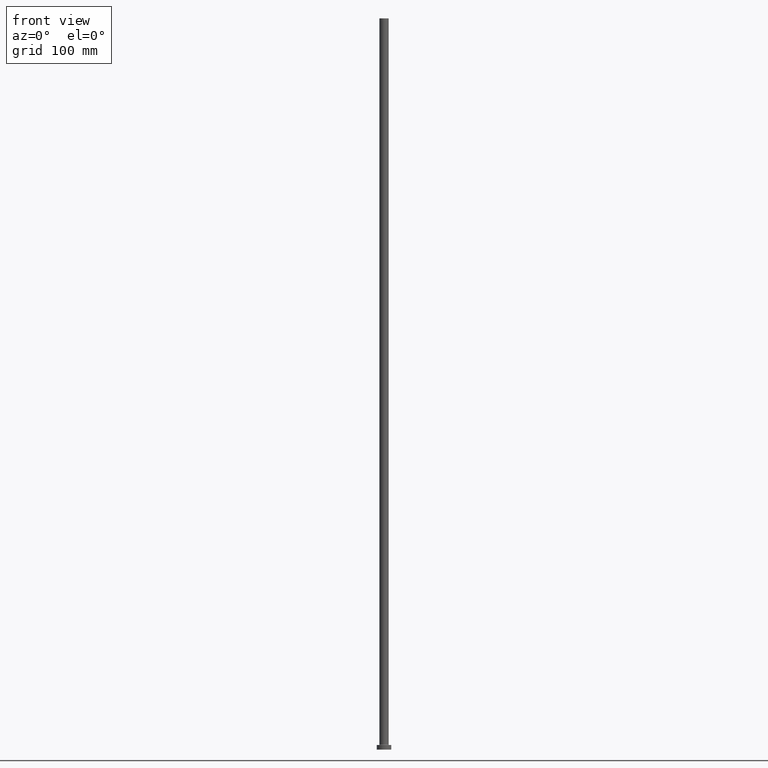
[diagram: clean part render]
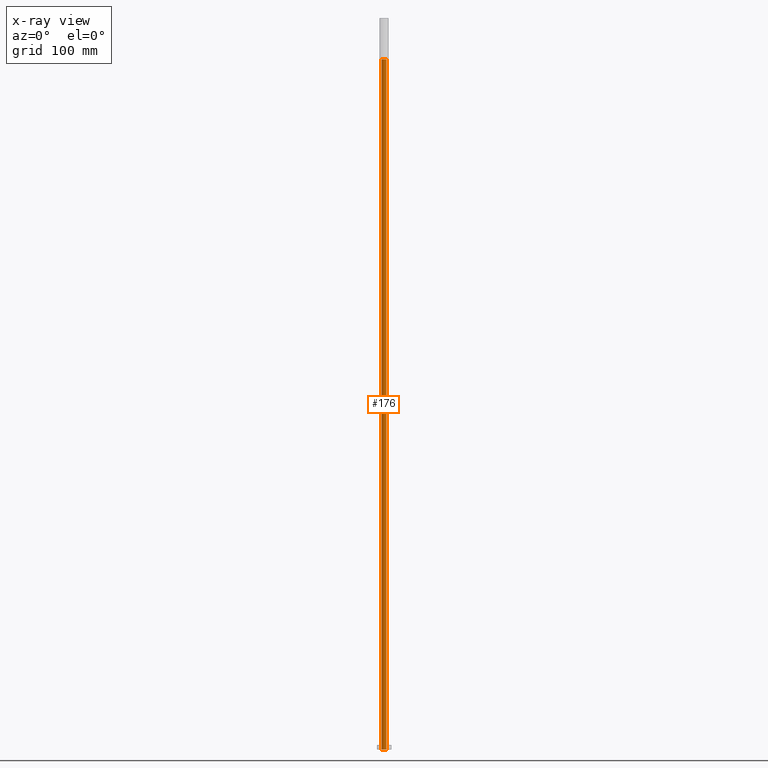
[diagram: x-ray — body ghosted, one internal face saturated and labeled with its STEP entity id]
A machine part, front view, then the same camera in x-ray: the body is ghosted and one INTERNAL B-rep face — a face not visible from any outside direction — is saturated and labeled: STEP entity #176.
In plain terms, the highlighted cylindrical surface (edge-blend (fillet) strip) has radius 2.65 mm, axis along (0, 0, -1).
Its self-contained STEP definition (entity closure, byte-faithful):
#3 = CIRCLE ( 'NONE', #120, 2.649999999999999911 ) ;
#4 = CARTESIAN_POINT ( 'NONE',  ( 2.649999999999999911, 3.245314017740485962E-16, 755.0000000000000000 ) ) ;
#6 = AXIS2_PLACEMENT_3D ( 'NONE', #245, #280, #47 ) ;
#22 = EDGE_CURVE ( 'NONE', #371, #219, #78, .T. ) ;
#28 = EDGE_CURVE ( 'NONE', #371, #98, #380, .T. ) ;
#30 = ORIENTED_EDGE ( 'NONE', *, *, #453, .T. ) ;
#38 = DIRECTION ( 'NONE',  ( 0.000000000000000000, 0.000000000000000000, -1.000000000000000000 ) ) ;
#40 = CARTESIAN_POINT ( 'NONE',  ( 0.000000000000000000, 0.000000000000000000, 0.000000000000000000 ) ) ;
#46 = LINE ( 'NONE', #314, #101 ) ;
#47 = DIRECTION ( 'NONE',  ( -1.000000000000000000, 0.000000000000000000, 0.000000000000000000 ) ) ;
#78 = CIRCLE ( 'NONE', #444, 2.649999999999999911 ) ;
#86 = VECTOR ( 'NONE', #450, 1000.000000000000000 ) ;
#98 = VERTEX_POINT ( 'NONE', #165 ) ;
#101 = VECTOR ( 'NONE', #38, 1000.000000000000000 ) ;
#102 = CARTESIAN_POINT ( 'NONE',  ( -2.649999999999999911, 0.000000000000000000, 762.4953318805775098 ) ) ;
#103 = VERTEX_POINT ( 'NONE', #301 ) ;
#120 = AXIS2_PLACEMENT_3D ( 'NONE', #40, #383, #347 ) ;
#149 = EDGE_CURVE ( 'NONE', #219, #103, #46, .T. ) ;
#165 = CARTESIAN_POINT ( 'NONE',  ( -2.649999999999999911, 0.000000000000000000, 0.000000000000000000 ) ) ;
#176 = ADVANCED_FACE ( 'NONE', ( #243 ), #429, .F. ) ;
#196 = ORIENTED_EDGE ( 'NONE', *, *, #149, .T. ) ;
#202 = DIRECTION ( 'NONE',  ( 0.000000000000000000, 0.000000000000000000, 1.000000000000000000 ) ) ;
#219 = VERTEX_POINT ( 'NONE', #4 ) ;
#243 = FACE_OUTER_BOUND ( 'NONE', #274, .T. ) ;
#245 = CARTESIAN_POINT ( 'NONE',  ( 0.000000000000000000, 0.000000000000000000, 762.4953318805775098 ) ) ;
#274 = EDGE_LOOP ( 'NONE', ( #397, #196, #30, #366 ) ) ;
#280 = DIRECTION ( 'NONE',  ( 0.000000000000000000, 0.000000000000000000, -1.000000000000000000 ) ) ;
#301 = CARTESIAN_POINT ( 'NONE',  ( 2.649999999999999911, 3.245314017740485962E-16, 0.000000000000000000 ) ) ;
#314 = CARTESIAN_POINT ( 'NONE',  ( 2.649999999999999911, 3.245314017740485962E-16, 762.4953318805775098 ) ) ;
#347 = DIRECTION ( 'NONE',  ( 1.000000000000000000, 0.000000000000000000, 0.000000000000000000 ) ) ;
#366 = ORIENTED_EDGE ( 'NONE', *, *, #28, .F. ) ;
#371 = VERTEX_POINT ( 'NONE', #395 ) ;
#380 = LINE ( 'NONE', #102, #86 ) ;
#383 = DIRECTION ( 'NONE',  ( -0.000000000000000000, -0.000000000000000000, -1.000000000000000000 ) ) ;
#395 = CARTESIAN_POINT ( 'NONE',  ( -2.649999999999999911, 0.000000000000000000, 755.0000000000000000 ) ) ;
#397 = ORIENTED_EDGE ( 'NONE', *, *, #22, .T. ) ;
#412 = CARTESIAN_POINT ( 'NONE',  ( 0.000000000000000000, 0.000000000000000000, 755.0000000000000000 ) ) ;
#415 = DIRECTION ( 'NONE',  ( 1.000000000000000000, 0.000000000000000000, 0.000000000000000000 ) ) ;
#429 = CYLINDRICAL_SURFACE ( 'NONE', #6, 2.649999999999999911 ) ;
#444 = AXIS2_PLACEMENT_3D ( 'NONE', #412, #202, #415 ) ;
#450 = DIRECTION ( 'NONE',  ( 0.000000000000000000, 0.000000000000000000, -1.000000000000000000 ) ) ;
#453 = EDGE_CURVE ( 'NONE', #103, #98, #3, .T. ) ;